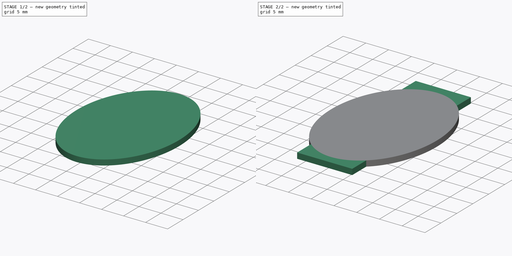
[diagram: build sequence overview — one tinted view per stage of 2, left to right]
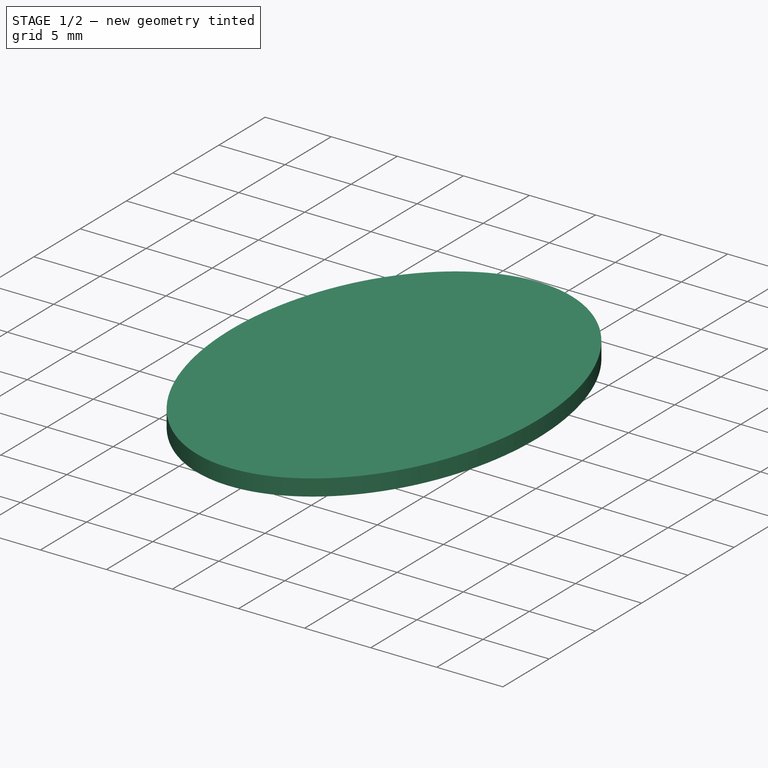
[diagram: stage 1 of 2 — iso view after this stage's code; geometry added in this stage tinted green]
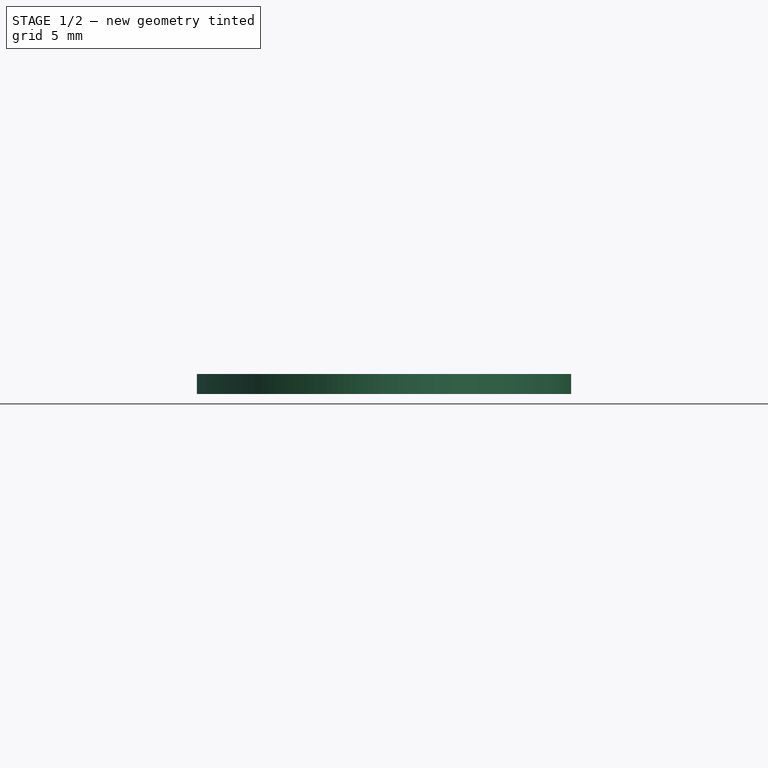
[diagram: stage 1 of 2 — front view after this stage's code; geometry added in this stage tinted green]
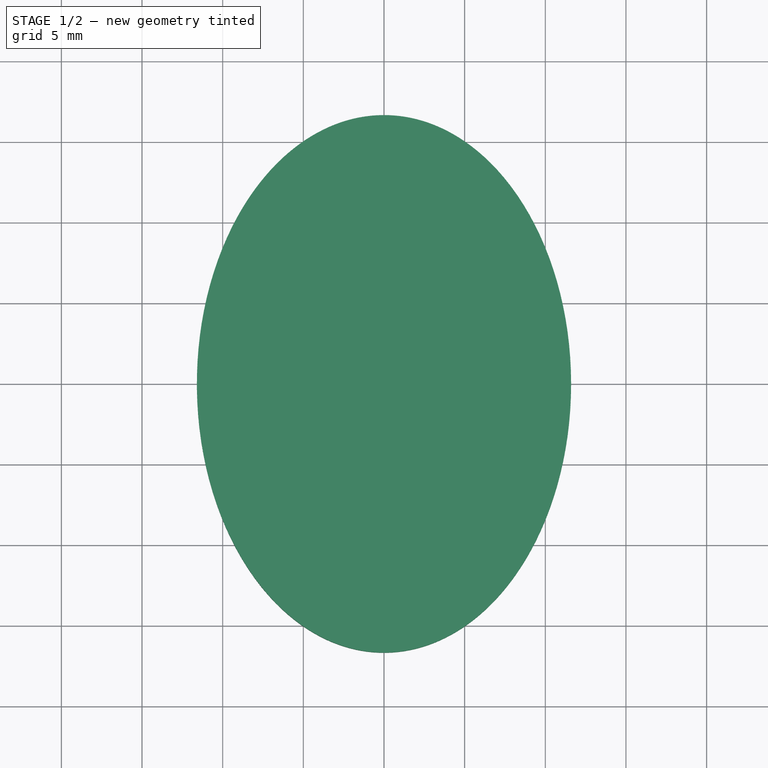
[diagram: stage 1 of 2 — top view after this stage's code; geometry added in this stage tinted green]
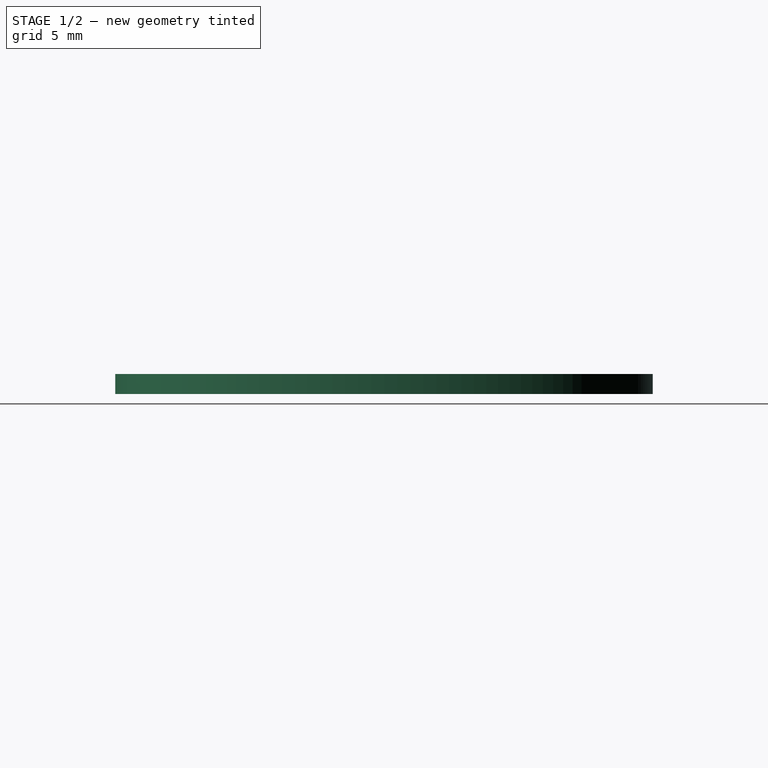
[diagram: stage 1 of 2 — right view after this stage's code; geometry added in this stage tinted green]
FCSTD DOCUMENT  (FreeCAD 0.20R29410 (Git))
Label: Lid
License: All rights reserved
LicenseURL: http://en.wikipedia.org/wiki/All_rights_reserved
objects: Sketcher::SketchObject×2, PartDesign::Pad×2, PartDesign::Body×1
note: 7 computed .brp shape members not serialized (recipe doc carries the construction recipe); baked Part::Feature solids carry a one-line shape summary decoded from their .brp

FEATURE [Sketcher::SketchObject] Sketch
  FullyConstrained = true
  MapMode = 5
  Support = -> [XY_Plane]
  sketch-geometry (5):
    g0: Ellipse CenterX=0 CenterY=0 CenterZ=0 NormalX=0 NormalY=0 NormalZ=1 MajorRadius=16.665 MinorRadius=11.6 AngleXU=1.5708
    g1: LineSegment StartX=0 StartY=16.665 StartZ=0 EndX=0 EndY=-16.665 EndZ=0
    g2: LineSegment StartX=-11.6 StartY=2.969e-13 StartZ=0 EndX=11.6 EndY=-2.969e-13 EndZ=0
    g3: GeomPoint X=-2.878e-13 Y=11.965 Z=0
    g4: GeomPoint X=2.878e-13 Y=-11.965 Z=0
  constraints (5):
    c: InternalAlignment(g1-g4 -> g0) x4
    c: Vertical(g1)
    c: DistanceX(g2,g2) = 23.2
    c: DistanceY(g1,g1) = 33.33
    c: Coincident(g0,g-1)
FEATURE [PartDesign::Pad] Pad
  Direction = (0,0,1)
  Length = 1.24
  Length2 = 10
  Profile = -> Sketch
  ReferenceAxis = -> Sketch [N_Axis]
  Type = 0
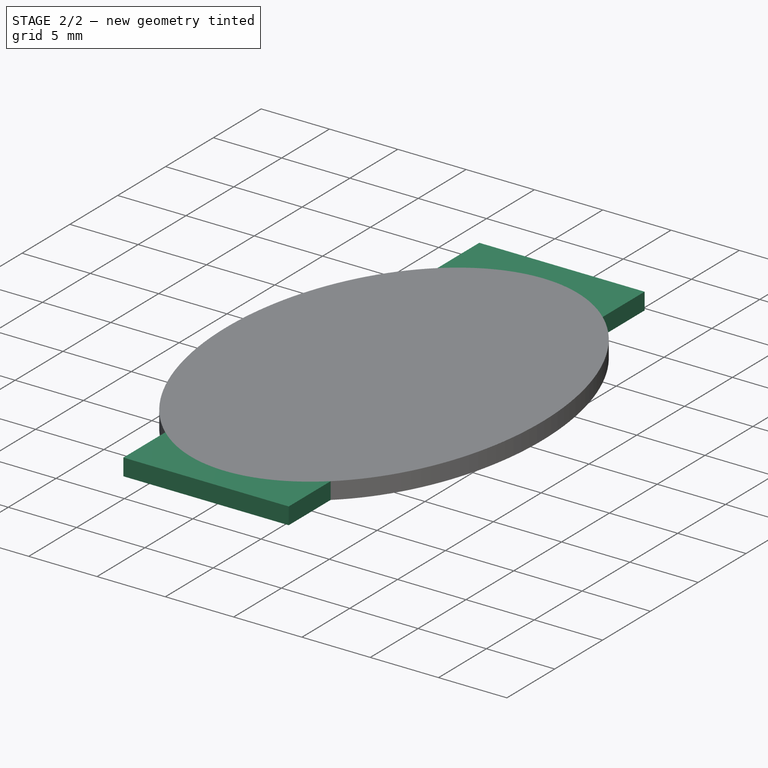
[diagram: stage 2 of 2 — iso view after this stage's code; geometry added in this stage tinted green]
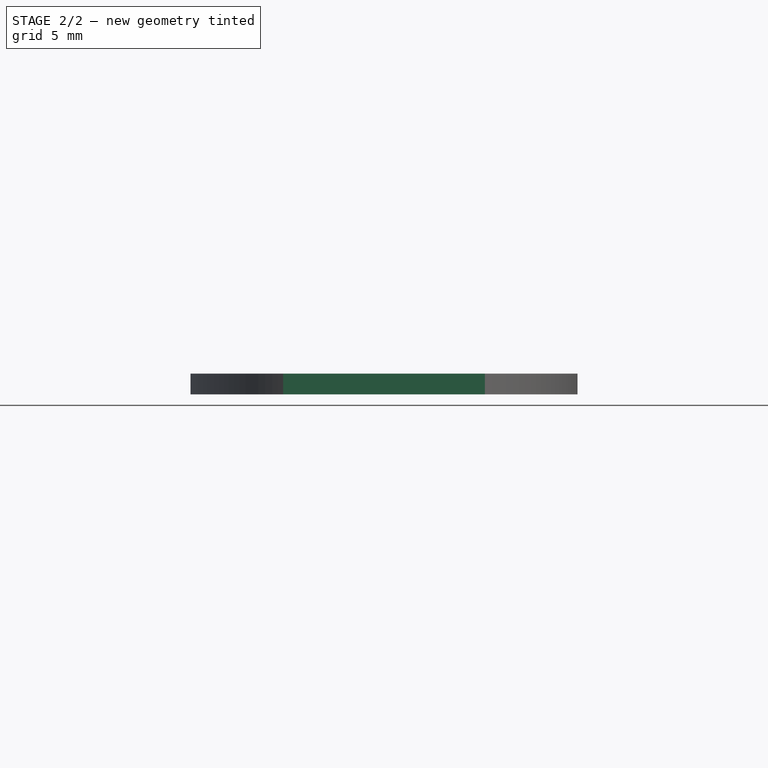
[diagram: stage 2 of 2 — front view after this stage's code; geometry added in this stage tinted green]
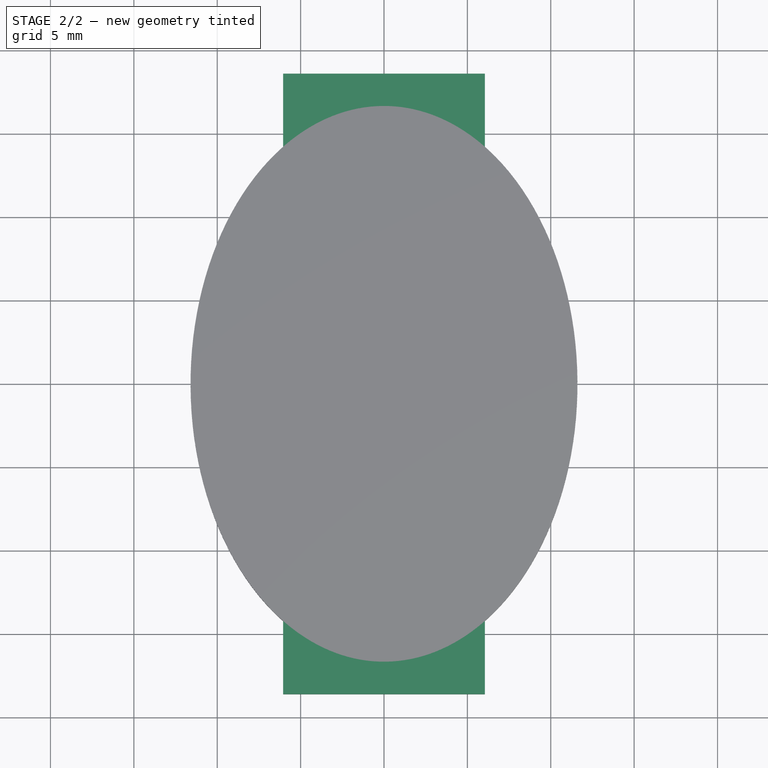
[diagram: stage 2 of 2 — top view after this stage's code; geometry added in this stage tinted green]
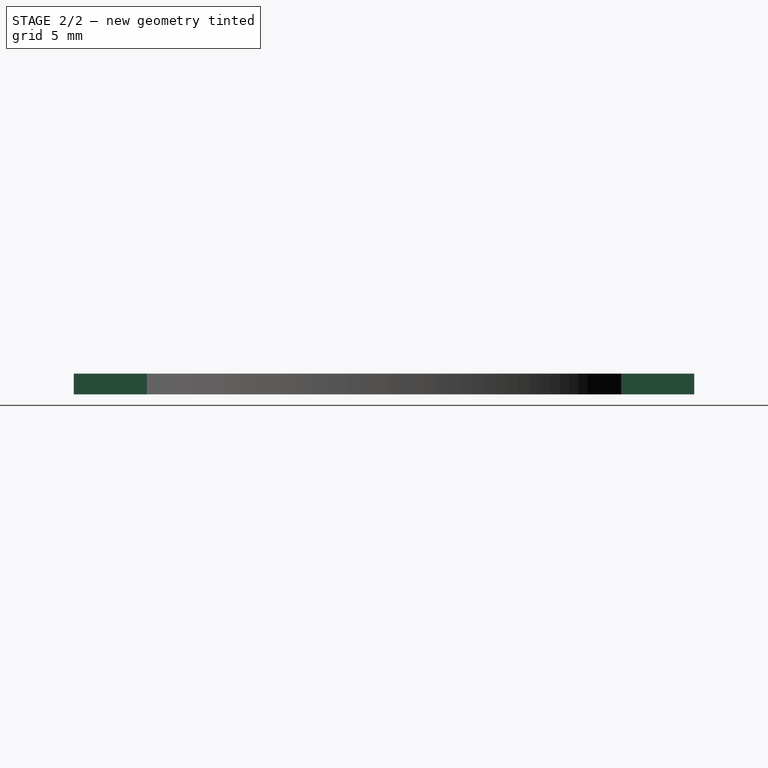
[diagram: stage 2 of 2 — right view after this stage's code; geometry added in this stage tinted green]
FEATURE [Sketcher::SketchObject] Sketch001
  FullyConstrained = true
  MapMode = 5
  Placement = pos=(0,0,0) rot=(1,0,0;3.14159rad)
  Support = -> [Pad]
  sketch-geometry (4):
    g0: LineSegment StartX=-6.05 StartY=18.6 StartZ=0 EndX=6.05 EndY=18.6 EndZ=0
    g1: LineSegment StartX=6.05 StartY=18.6 StartZ=0 EndX=6.05 EndY=-18.6 EndZ=0
    g2: LineSegment StartX=6.05 StartY=-18.6 StartZ=0 EndX=-6.05 EndY=-18.6 EndZ=0
    g3: LineSegment StartX=-6.05 StartY=-18.6 StartZ=0 EndX=-6.05 EndY=18.6 EndZ=0
  constraints (12):
    c: Coincident(g0,g1)
    c: Coincident(g1,g2)
    c: Coincident(g2,g3)
    c: Coincident(g3,g0)
    c: Horizontal(g0)
    c: Horizontal(g2)
    c: Vertical(g1)
    c: Vertical(g3)
    c: DistanceX(g2,g2) = 12.1
    c: DistanceY(g3,g3) = 37.2
    c: DistanceX(g2) = -6.05
    c: DistanceY(g2) = -18.6
FEATURE [PartDesign::Pad] Pad001
  BaseFeature = -> Pad
  Direction = (0,0,-1)
  Length = 1.24
  Length2 = 10
  Profile = -> Sketch001
  ReferenceAxis = -> Sketch001 [N_Axis]
  Reversed = true
  Type = 0
FEATURE [PartDesign::Body] Body
  Group = -> [Sketch,Pad,Sketch001,Pad001]
  Origin = -> Origin
  Tip = -> Pad001
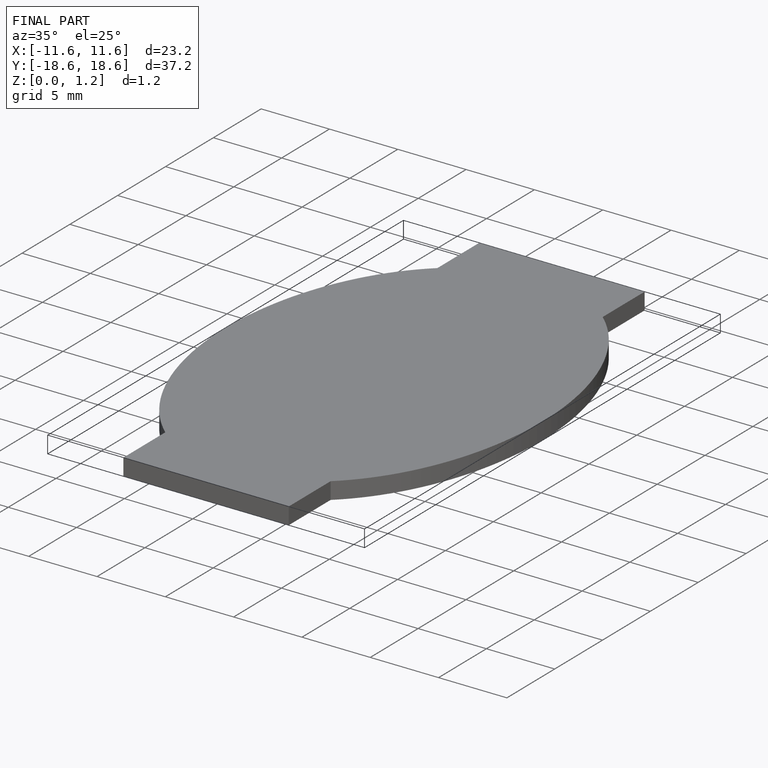
[diagram: finished part — iso view with bounding-box wireframe]
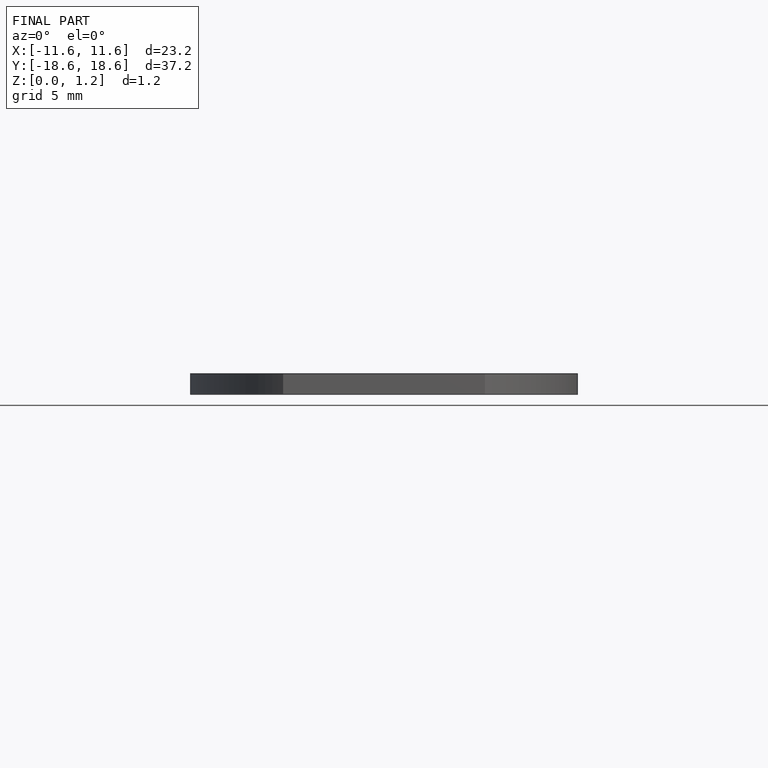
[diagram: finished part — front view with bounding-box wireframe]
